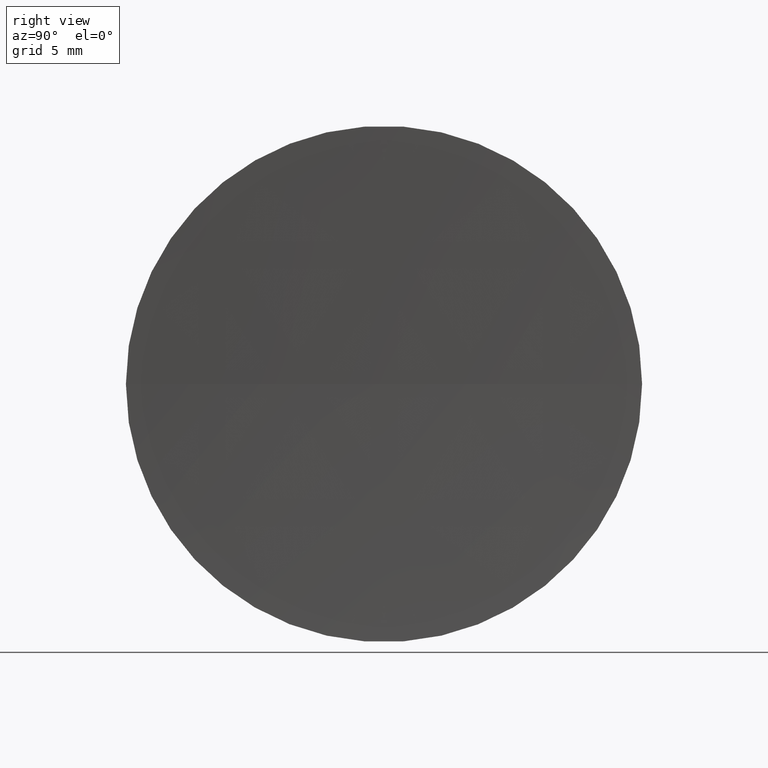
[diagram: clean part render]
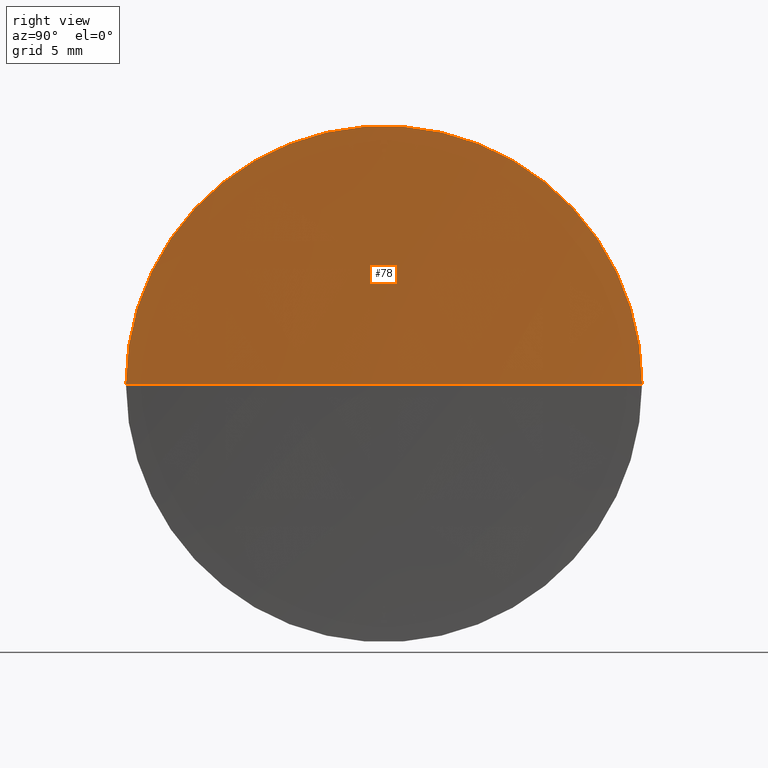
[diagram: same view with one face highlighted and labeled with its STEP entity id]
A machine part, right view. The second image highlights one B-rep face of the part: STEP entity #78.
In plain terms, the highlighted spherical surface has radius 380 mm.
Its self-contained STEP definition (entity closure, byte-faithful):
#2 = DIRECTION ( 'NONE',  ( 0.0000000000000000000, 1.000000000000000000, 1.224646799147353200E-016 ) ) ;
#11 = AXIS2_PLACEMENT_3D ( 'NONE', #92, #156, #122 ) ;
#26 = AXIS2_PLACEMENT_3D ( 'NONE', #154, #153, #47 ) ;
#41 = EDGE_LOOP ( 'NONE', ( #70, #107, #157 ) ) ;
#45 = AXIS2_PLACEMENT_3D ( 'NONE', #180, #160, #112 ) ;
#47 = DIRECTION ( 'NONE',  ( 1.000000000000000000, 0.0000000000000000000, 0.0000000000000000000 ) ) ;
#53 = DIRECTION ( 'NONE',  ( -8.496118506040342700E-032, 1.224646799147353200E-016, -1.000000000000000000 ) ) ;
#56 = AXIS2_PLACEMENT_3D ( 'NONE', #94, #53, #2 ) ;
#59 = CIRCLE ( 'NONE', #45, 19.02500000000002000 ) ;
#61 = VERTEX_POINT ( 'NONE', #186 ) ;
#68 = CARTESIAN_POINT ( 'NONE',  ( 126.7554213155557800, 65.21684047093999900, 0.0000000000000000000 ) ) ;
#70 = ORIENTED_EDGE ( 'NONE', *, *, #141, .F. ) ;
#77 = EDGE_CURVE ( 'NONE', #61, #79, #183, .T. ) ;
#78 = ADVANCED_FACE ( 'NONE', ( #149 ), #110, .F. ) ;
#79 = VERTEX_POINT ( 'NONE', #68 ) ;
#92 = CARTESIAN_POINT ( 'NONE',  ( 506.7554213155558500, 65.21684047094022700, 0.0000000000000000000 ) ) ;
#94 = CARTESIAN_POINT ( 'NONE',  ( 506.7554213155558500, 65.21684047094022700, 0.0000000000000000000 ) ) ;
#107 = ORIENTED_EDGE ( 'NONE', *, *, #167, .T. ) ;
#110 = SPHERICAL_SURFACE ( 'NONE', #11, 380.0000000000000600 ) ;
#112 = DIRECTION ( 'NONE',  ( 0.0000000000000000000, -1.000000000000000000, 0.0000000000000000000 ) ) ;
#122 = DIRECTION ( 'NONE',  ( -5.843279076974507500E-016, 1.000000000000000000, 0.0000000000000000000 ) ) ;
#134 = CIRCLE ( 'NONE', #56, 380.0000000000000600 ) ;
#139 = CARTESIAN_POINT ( 'NONE',  ( 127.2319709531309400, 46.19184047093946800, -2.329890535377901000E-015 ) ) ;
#140 = VERTEX_POINT ( 'NONE', #139 ) ;
#141 = EDGE_CURVE ( 'NONE', #140, #61, #59, .T. ) ;
#149 = FACE_OUTER_BOUND ( 'NONE', #41, .T. ) ;
#153 = DIRECTION ( 'NONE',  ( 0.0000000000000000000, -0.0000000000000000000, 1.000000000000000000 ) ) ;
#154 = CARTESIAN_POINT ( 'NONE',  ( 506.7554213155558500, 65.21684047094022700, 0.0000000000000000000 ) ) ;
#156 = DIRECTION ( 'NONE',  ( 0.0000000000000000000, 0.0000000000000000000, -1.000000000000000000 ) ) ;
#157 = ORIENTED_EDGE ( 'NONE', *, *, #77, .F. ) ;
#160 = DIRECTION ( 'NONE',  ( -1.000000000000000000, -6.937607244762875000E-016, -0.0000000000000000000 ) ) ;
#167 = EDGE_CURVE ( 'NONE', #140, #79, #134, .T. ) ;
#180 = CARTESIAN_POINT ( 'NONE',  ( 127.2319709531308800, 65.21684047094034000, 0.0000000000000000000 ) ) ;
#183 = CIRCLE ( 'NONE', #26, 380.0000000000001100 ) ;
#186 = CARTESIAN_POINT ( 'NONE',  ( 127.2319709531309400, 84.24184047094084300, 0.0000000000000000000 ) ) ;